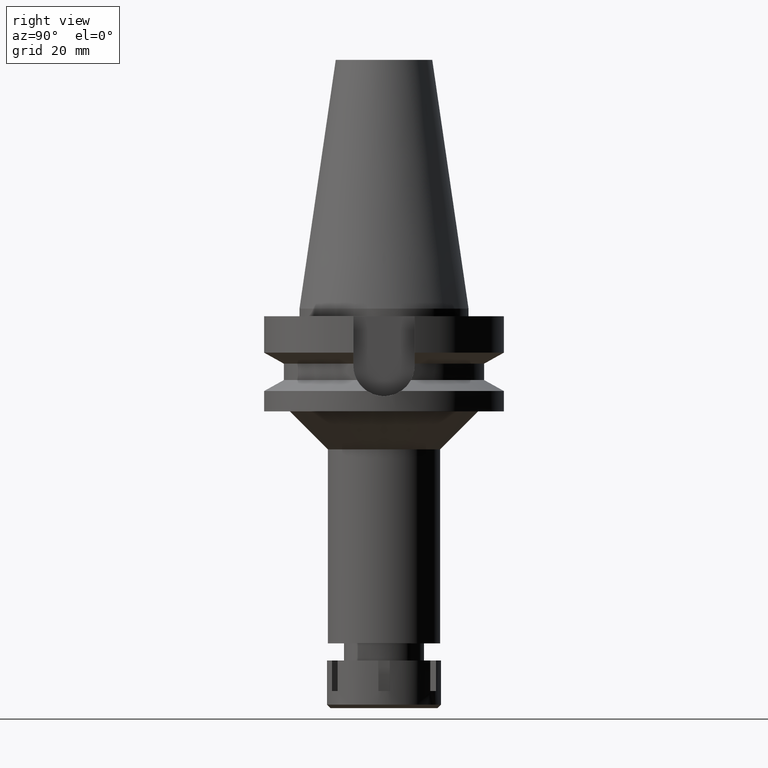
[diagram: clean part render]
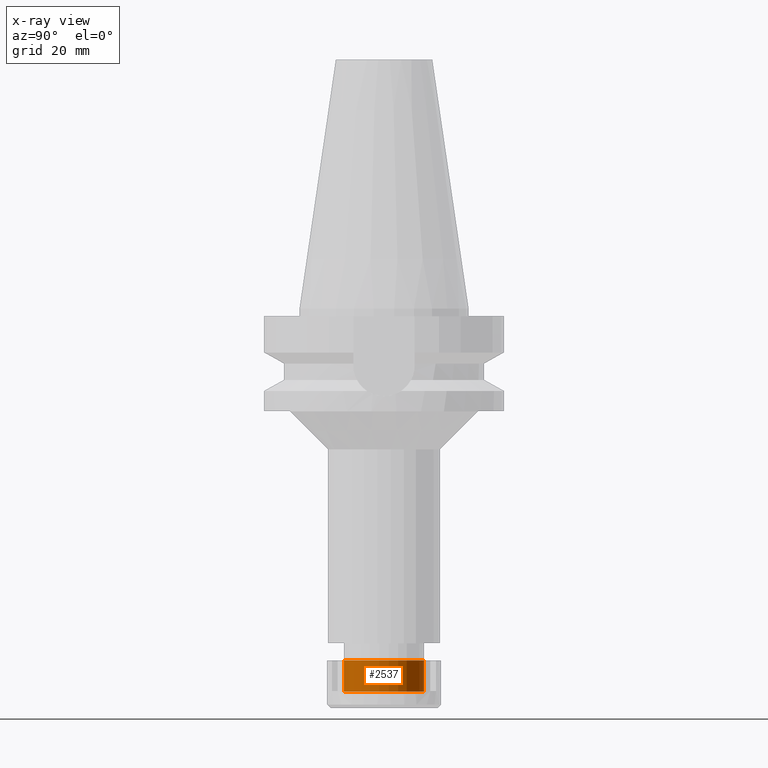
[diagram: x-ray — body ghosted, one internal face saturated and labeled with its STEP entity id]
A machine part, right view, then the same camera in x-ray: the body is ghosted and one INTERNAL B-rep face — a face not visible from any outside direction — is saturated and labeled: STEP entity #2537.
In plain terms, the highlighted cylindrical surface (partial cylindrical patch) has radius 10.5 mm, axis along (0, 0, -1).
Its self-contained STEP definition (entity closure, byte-faithful):
#1 = CARTESIAN_POINT ( 'NONE',  ( 0.0000000000000000000, 0.0000000000000000000, 0.0000000000000000000 ) ) ;
#9 = VERTEX_POINT ( 'NONE', #1197 ) ;
#215 = DIRECTION ( 'NONE',  ( 0.0000000000000000000, 0.0000000000000000000, 1.000000000000000000 ) ) ;
#285 = AXIS2_PLACEMENT_3D ( 'NONE', #501, #1632, #2756 ) ;
#397 = ORIENTED_EDGE ( 'NONE', *, *, #3551, .T. ) ;
#398 = CARTESIAN_POINT ( 'NONE',  ( 0.0000000000000000000, -10.50000000000000000, -8.200000000000001066 ) ) ;
#501 = CARTESIAN_POINT ( 'NONE',  ( 0.0000000000000000000, 0.0000000000000000000, 0.0000000000000000000 ) ) ;
#529 = CARTESIAN_POINT ( 'NONE',  ( 0.0000000000000000000, 10.50000000000000000, 0.0000000000000000000 ) ) ;
#565 = CYLINDRICAL_SURFACE ( 'NONE', #1335, 10.50000000000000000 ) ;
#858 = VERTEX_POINT ( 'NONE', #529 ) ;
#888 = CARTESIAN_POINT ( 'NONE',  ( 0.0000000000000000000, -10.50000000000000000, 0.0000000000000000000 ) ) ;
#1058 = ORIENTED_EDGE ( 'NONE', *, *, #3534, .T. ) ;
#1197 = CARTESIAN_POINT ( 'NONE',  ( 0.0000000000000000000, 10.50000000000000000, -8.200000000000001066 ) ) ;
#1254 = ORIENTED_EDGE ( 'NONE', *, *, #3230, .T. ) ;
#1335 = AXIS2_PLACEMENT_3D ( 'NONE', #1, #1980, #1929 ) ;
#1351 = VECTOR ( 'NONE', #1846, 1000.000000000000000 ) ;
#1632 = DIRECTION ( 'NONE',  ( 0.0000000000000000000, 0.0000000000000000000, 1.000000000000000000 ) ) ;
#1814 = CIRCLE ( 'NONE', #285, 10.50000000000000000 ) ;
#1835 = CARTESIAN_POINT ( 'NONE',  ( 0.0000000000000000000, 0.0000000000000000000, -8.200000000000001066 ) ) ;
#1846 = DIRECTION ( 'NONE',  ( 0.0000000000000000000, 0.0000000000000000000, 1.000000000000000000 ) ) ;
#1865 = VECTOR ( 'NONE', #215, 1000.000000000000000 ) ;
#1929 = DIRECTION ( 'NONE',  ( 0.0000000000000000000, -1.000000000000000000, 0.0000000000000000000 ) ) ;
#1980 = DIRECTION ( 'NONE',  ( 0.0000000000000000000, 0.0000000000000000000, -1.000000000000000000 ) ) ;
#2025 = EDGE_LOOP ( 'NONE', ( #1058, #397, #1254, #2325 ) ) ;
#2196 = LINE ( 'NONE', #2735, #1865 ) ;
#2325 = ORIENTED_EDGE ( 'NONE', *, *, #3214, .F. ) ;
#2427 = VERTEX_POINT ( 'NONE', #888 ) ;
#2487 = FACE_OUTER_BOUND ( 'NONE', #2025, .T. ) ;
#2537 = ADVANCED_FACE ( 'NONE', ( #2487 ), #565, .F. ) ;
#2735 = CARTESIAN_POINT ( 'NONE',  ( 0.0000000000000000000, 10.50000000000000000, -8.200000000000001066 ) ) ;
#2756 = DIRECTION ( 'NONE',  ( 0.0000000000000000000, -1.000000000000000000, 0.0000000000000000000 ) ) ;
#2822 = AXIS2_PLACEMENT_3D ( 'NONE', #1835, #3537, #3518 ) ;
#3214 = EDGE_CURVE ( 'NONE', #9, #858, #2196, .T. ) ;
#3230 = EDGE_CURVE ( 'NONE', #2427, #858, #1814, .T. ) ;
#3236 = LINE ( 'NONE', #3254, #1351 ) ;
#3254 = CARTESIAN_POINT ( 'NONE',  ( 0.0000000000000000000, -10.50000000000000000, -8.200000000000001066 ) ) ;
#3349 = CIRCLE ( 'NONE', #2822, 10.50000000000000000 ) ;
#3440 = VERTEX_POINT ( 'NONE', #398 ) ;
#3518 = DIRECTION ( 'NONE',  ( 0.0000000000000000000, 1.000000000000000000, 0.0000000000000000000 ) ) ;
#3534 = EDGE_CURVE ( 'NONE', #9, #3440, #3349, .T. ) ;
#3537 = DIRECTION ( 'NONE',  ( 0.0000000000000000000, 0.0000000000000000000, -1.000000000000000000 ) ) ;
#3551 = EDGE_CURVE ( 'NONE', #3440, #2427, #3236, .T. ) ;